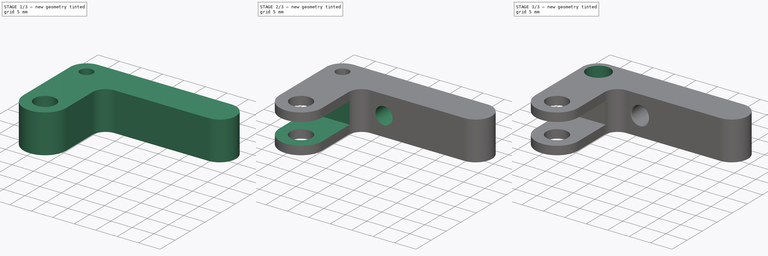
[diagram: build sequence overview — one tinted view per stage of 3, left to right]
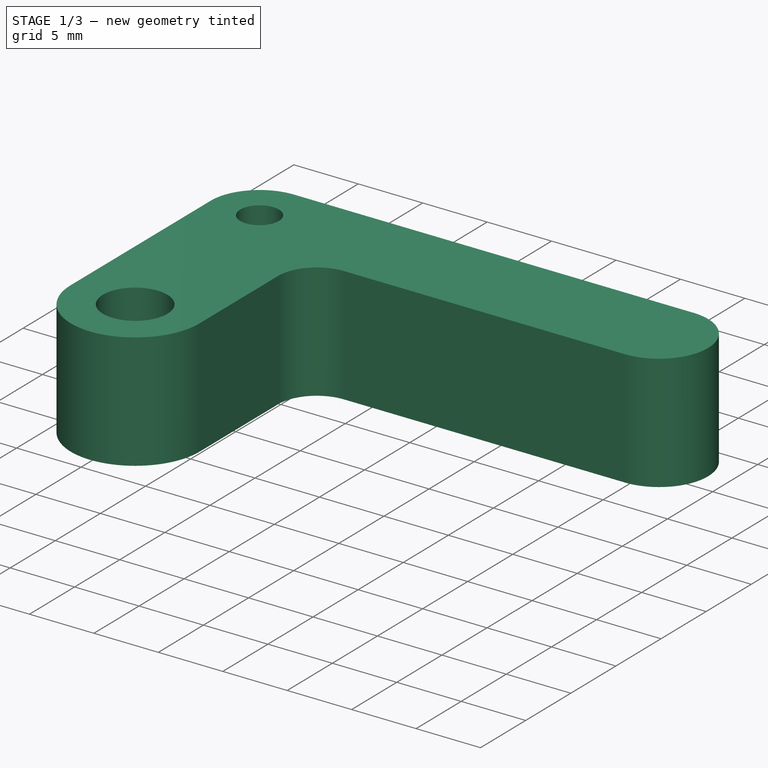
[diagram: stage 1 of 3 — iso view after this stage's code; geometry added in this stage tinted green]
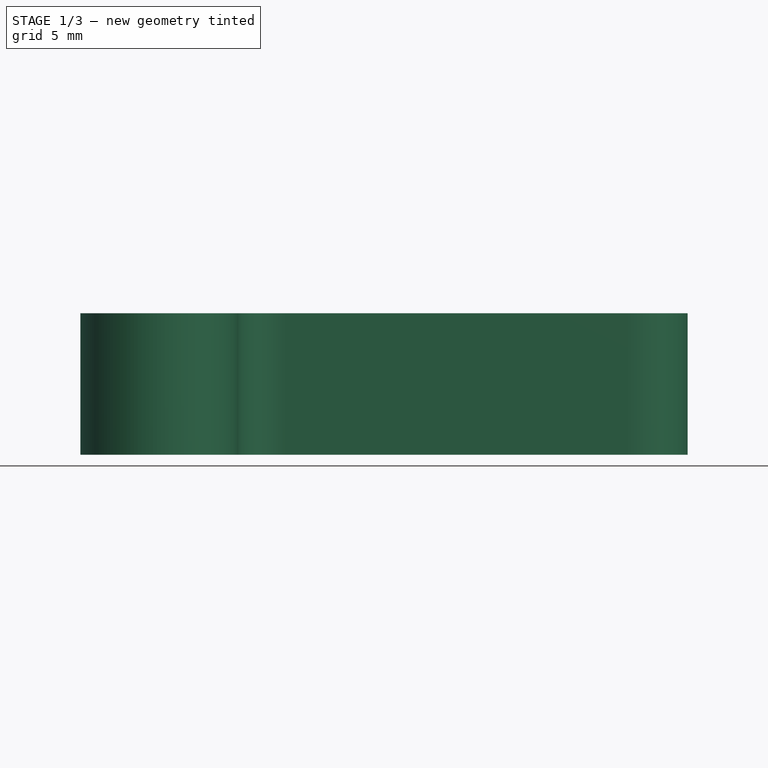
[diagram: stage 1 of 3 — front view after this stage's code; geometry added in this stage tinted green]
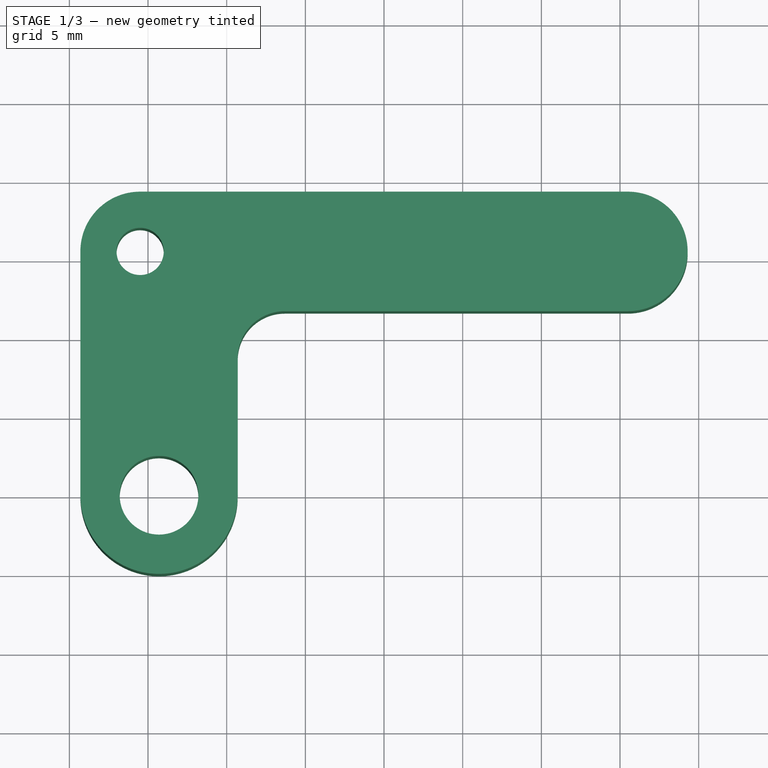
[diagram: stage 1 of 3 — top view after this stage's code; geometry added in this stage tinted green]
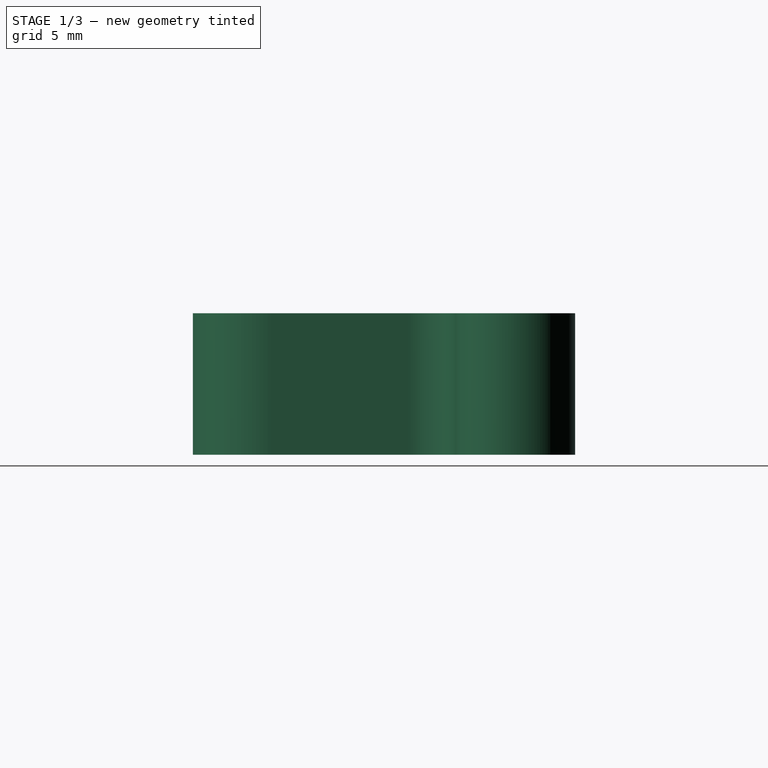
[diagram: stage 1 of 3 — right view after this stage's code; geometry added in this stage tinted green]
FCSTD DOCUMENT  (FreeCAD 0.15R4671 (Git))
Label: bowdenLeaver
License: All rights reserved
LicenseURL: http://en.wikipedia.org/wiki/All_rights_reserved
objects: Drawing::FeatureView×11, Drawing::FeatureViewPart×8, Sketcher::SketchObject×4, PartDesign::Pocket×3, PartDesign::Pad×1, PartDesign::Fillet×1, PartDesign::Chamfer×1, Drawing::FeaturePage×1
note: 14 computed .brp shape members not serialized (recipe doc carries the construction recipe); baked Part::Feature solids carry a one-line shape summary decoded from their .brp

FEATURE [Sketcher::SketchObject] Sketch
  sketch-geometry (30):
    g0: LineSegment [constr] StartX=-21.15 StartY=21.15 StartZ=0 EndX=21.15 EndY=21.15 EndZ=0
    g1: LineSegment [constr] StartX=21.15 StartY=21.15 StartZ=0 EndX=21.15 EndY=-21.15 EndZ=0
    g2: LineSegment [constr] StartX=21.15 StartY=-21.15 StartZ=0 EndX=-21.15 EndY=-21.15 EndZ=0
    g3: LineSegment [constr] StartX=-21.15 StartY=-21.15 StartZ=0 EndX=-21.15 EndY=21.15 EndZ=0
    g4: Circle [constr] CenterX=15.5 CenterY=15.5 CenterZ=0 NormalX=0 NormalY=0 NormalZ=1 Radius=1.5
    g5: Circle CenterX=-15.5 CenterY=15.5 CenterZ=0 NormalX=0 NormalY=0 NormalZ=1 Radius=1.5
    g6: Circle [constr] CenterX=-15.5 CenterY=-15.5 CenterZ=0 NormalX=0 NormalY=0 NormalZ=1 Radius=1.5
    g7: Circle [constr] CenterX=15.5 CenterY=-15.5 CenterZ=0 NormalX=0 NormalY=0 NormalZ=1 Radius=1.5
    g8: Circle [constr] CenterX=0 CenterY=0 CenterZ=0 NormalX=0 NormalY=0 NormalZ=1 Radius=4
    g9: Circle [constr] CenterX=-14.3 CenterY=0 CenterZ=0 NormalX=0 NormalY=0 NormalZ=1 Radius=8
    g10: Circle [constr] CenterX=0 CenterY=0 CenterZ=0 NormalX=0 NormalY=0 NormalZ=1 Radius=3.5
    g11: LineSegment [constr] StartX=-3.5 StartY=0 StartZ=0 EndX=-6.3 EndY=0 EndZ=0
    g12: LineSegment [constr] StartX=-21.15 StartY=-11.15 StartZ=0 EndX=-9.15 EndY=-11.15 EndZ=0
    g13: LineSegment [constr] StartX=21.15 StartY=-11.15 StartZ=0 EndX=21.15 EndY=-21.15 EndZ=0
    g14: LineSegment [constr] StartX=21.15 StartY=-21.15 StartZ=0 EndX=-21.15 EndY=-21.15 EndZ=0
    g15: LineSegment [constr] StartX=-21.15 StartY=-21.15 StartZ=0 EndX=-21.15 EndY=-11.15 EndZ=0
    g16: ArcOfCircle [constr] CenterX=-14.3 CenterY=0 CenterZ=0 NormalX=0 NormalY=0 NormalZ=1 Radius=8.5 StartAngle=5.36326 EndAngle=6.28319
    g17: LineSegment [constr] StartX=-9.15 StartY=-6.76221 StartZ=0 EndX=-9.15 EndY=-11.15 EndZ=0
    g18: ArcOfCircle [constr] CenterX=0 CenterY=0 CenterZ=0 NormalX=0 NormalY=0 NormalZ=1 Radius=4.5 StartAngle=3.14159 EndAngle=4.52236
    g19: LineSegment [constr] StartX=-5.8 StartY=0 StartZ=0 EndX=-4.5 EndY=0 EndZ=0
    g20: LineSegment [constr] StartX=-0.85 StartY=-4.41899 StartZ=0 EndX=-0.85 EndY=-11.15 EndZ=0
    g21: LineSegment [constr] StartX=-0.85 StartY=-11.15 StartZ=0 EndX=21.15 EndY=-11.15 EndZ=0
    g22: LineSegment StartX=15.5 StartY=19.3 StartZ=0 EndX=-15.5 EndY=19.3 EndZ=0
    g23: LineSegment StartX=-19.3 StartY=15.5 StartZ=0 EndX=-19.3 EndY=9.4581e-08 EndZ=0
    g24: LineSegment StartX=-9.3 StartY=11.7 StartZ=0 EndX=-9.3 EndY=1.8515e-08 EndZ=0
    g25: LineSegment StartX=-9.3 StartY=11.7 StartZ=0 EndX=15.5 EndY=11.7 EndZ=0
    g26: Circle CenterX=-14.3 CenterY=0 CenterZ=0 NormalX=0 NormalY=0 NormalZ=1 Radius=2.5
    g27: ArcOfCircle CenterX=-14.3 CenterY=0 CenterZ=0 NormalX=0 NormalY=0 NormalZ=1 Radius=5 StartAngle=3.14159 EndAngle=6.28319
    g28: ArcOfCircle CenterX=-15.5 CenterY=15.5 CenterZ=0 NormalX=0 NormalY=0 NormalZ=1 Radius=3.8 StartAngle=1.5708 EndAngle=3.14159
    g29: ArcOfCircle CenterX=15.5 CenterY=15.5 CenterZ=0 NormalX=0 NormalY=0 NormalZ=1 Radius=3.8 StartAngle=4.71239 EndAngle=7.85398
  constraints (83):
    c: Coincident(g0,g1)
    c: Coincident(g1,g2)
    c: Coincident(g2,g3)
    c: Coincident(g3,g0)
    c: Horizontal(g0)
    c: Horizontal(g2)
    c: Vertical(g1)
    c: Vertical(g3)
    c: Symmetric(g0,g1,g-1)
    c: Symmetric(g0,g0,g-2)
    c: Equal(g1,g0)
    c: DistanceY(g1) = -42.3
    c: Equal(g7,g4)
    c: Equal(g4,g5)
    c: Equal(g5,g6)
    c: Radius(g4) = 1.5
    c: Symmetric(g4,g5,g-2)
    c: Symmetric(g5,g6,g-1)
    c: Symmetric(g7,g6,g-2)
    c: DistanceX(g4,g5) = -31
    c: DistanceY(g5,g6) = -31
    c: Coincident(g8,g-1)
    c: Radius(g8) = 4
    c: Radius(g9) = 8
    c: PointOnObject(g9,g-1)
    c: Coincident(g10,g-1)
    c: Radius(g10) = 3.5
    c: PointOnObject(g11,g10)
    c: PointOnObject(g11,g9)
    c: Horizontal(g11)
    c: PointOnObject(g11,g-1)
    c: DistanceX(g11) = -2.8
    c: Coincident(g21,g13)
    c: Coincident(g13,g14)
    c: Coincident(g14,g15)
    c: Coincident(g15,g12)
    c: Horizontal(g12)
    c: Horizontal(g14)
    c: Vertical(g13)
    c: Vertical(g15)
    c: PointOnObject(g12,g3)
    c: Coincident(g13,g1)
    c: DistanceY(g21,g1) = -10
    c: Coincident(g16,g9)
    c: Radius(g16) = 8.5
    c: Coincident(g17,g16)
    c: Vertical(g17)
    c: Coincident(g18,g-1)
    c: Coincident(g19,g16)
    c: Coincident(g19,g18)
    c: Horizontal(g19)
    c: Radius(g18) = 4.5
    c: Coincident(g20,g18)
    c: Vertical(g20)
    c: Coincident(g12,g17)
    c: Coincident(g21,g20)
    c: Tangent(g12,g21)
    c: DistanceX(g12) = 12
    c: DistanceX(g21) = 22
    c: PointOnObject(g16,g11)
    c: Horizontal(g22)
    c: Vertical(g23)
    c: Vertical(g24)
    c: Horizontal(g25)
    c: Coincident(g26,g9)
    c: Radius(g26) = 2.5
    c: Coincident(g27,g9)
    c: Radius(g27) = 5
    c: Coincident(g27,g23)
    c: Coincident(g27,g24)
    c: Coincident(g28,g5)
    c: Tangent(g23,g28)
    c: Coincident(g28,g23)
    c: Tangent(g22,g28)
    c: Coincident(g28,g22)
    c: Tangent(g27,g23)
    c: Tangent(g27,g24)
    c: Coincident(g29,g4)
    c: Coincident(g22,g29)
    c: Tangent(g22,g29)
    c: Coincident(g25,g29)
    c: Tangent(g29,g25)
    c: Coincident(g24,g25)
FEATURE [PartDesign::Pad] Pad
  Length = 9
  Length2 = 100
  Sketch = -> Sketch
  Type = 0
FEATURE [PartDesign::Fillet] Fillet
  Base = -> Pad [Edge1]
  Radius = 3
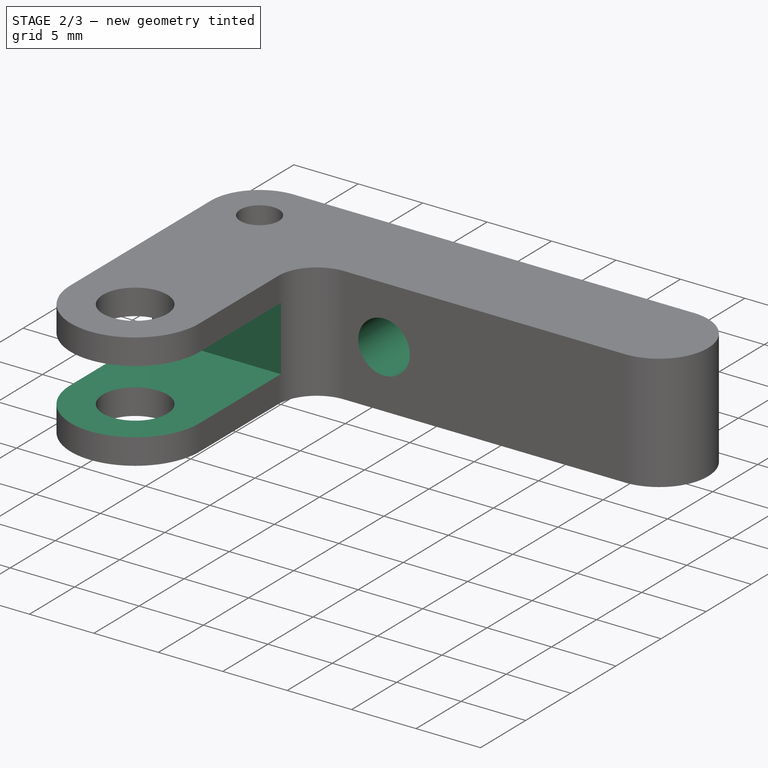
[diagram: stage 2 of 3 — iso view after this stage's code; geometry added in this stage tinted green]
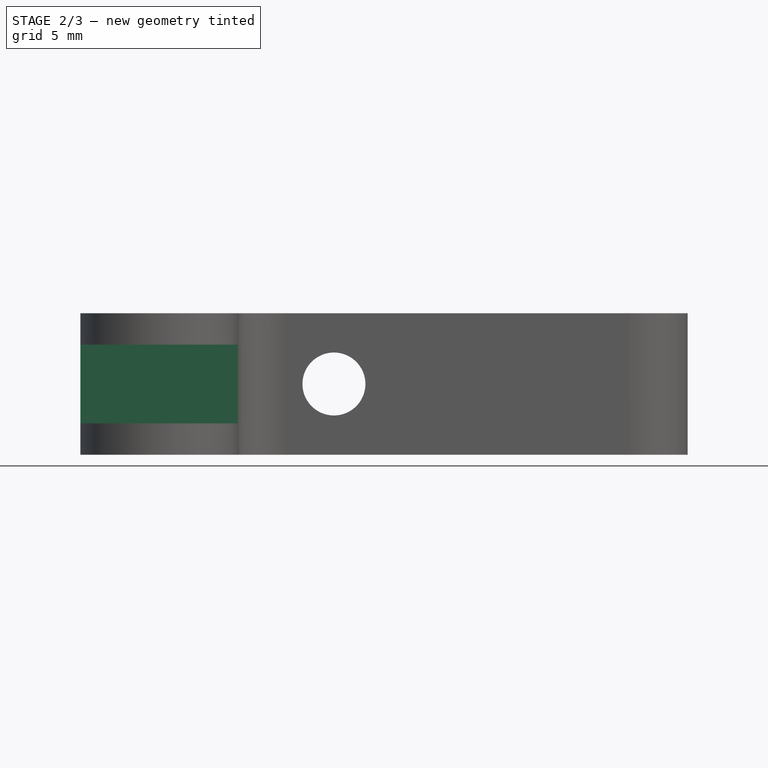
[diagram: stage 2 of 3 — front view after this stage's code; geometry added in this stage tinted green]
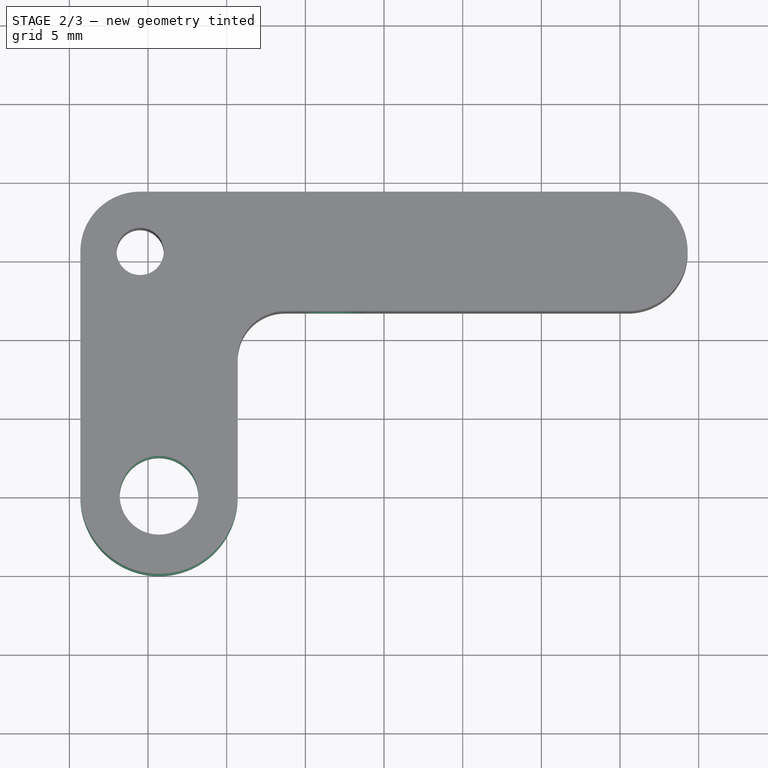
[diagram: stage 2 of 3 — top view after this stage's code; geometry added in this stage tinted green]
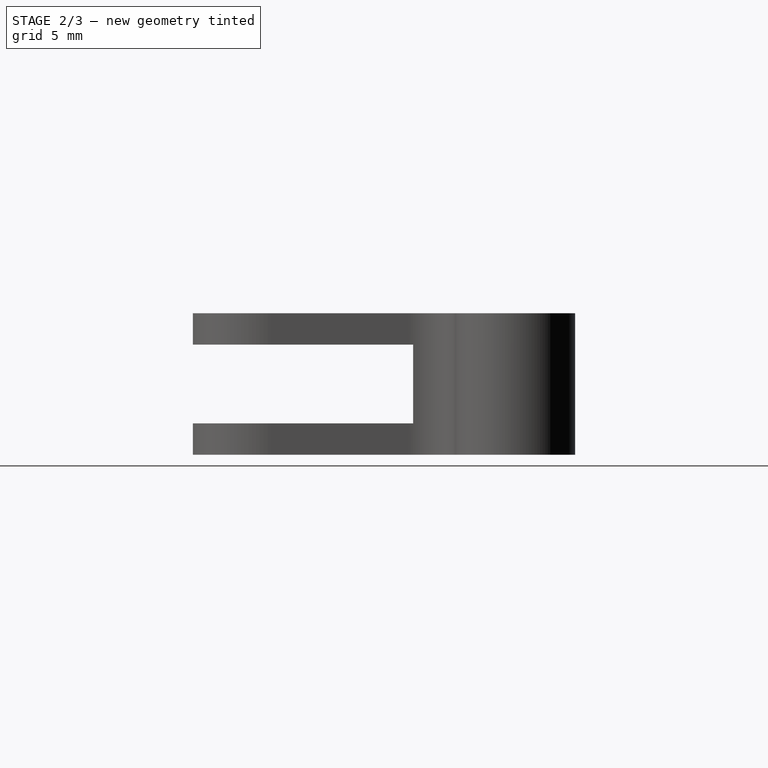
[diagram: stage 2 of 3 — right view after this stage's code; geometry added in this stage tinted green]
FEATURE [Sketcher::SketchObject] Sketch001
  ExternalGeometry = -> [Fillet]
  Placement = pos=(-19.3,0,0) rot=(0.57735,-0.57735,-0.57735;2.0944rad)
  Support = -> Fillet [Face10]
  sketch-geometry (6):
    g0: LineSegment StartX=-9 StartY=7 StartZ=0 EndX=6 EndY=7 EndZ=0
    g1: LineSegment StartX=6 StartY=7 StartZ=0 EndX=6 EndY=2 EndZ=0
    g2: LineSegment StartX=6 StartY=2 StartZ=0 EndX=-9 EndY=2 EndZ=0
    g3: LineSegment StartX=-9 StartY=2 StartZ=0 EndX=-9 EndY=7 EndZ=0
    g4: LineSegment [constr] StartX=-4.3774e-08 StartY=9 StartZ=0 EndX=-4.3774e-08 EndY=7 EndZ=0
    g5: LineSegment [constr] StartX=0 StartY=2 StartZ=0 EndX=0 EndY=0 EndZ=0
  constraints (17):
    c: Coincident(g0,g1)
    c: Coincident(g1,g2)
    c: Coincident(g2,g3)
    c: Coincident(g3,g0)
    c: Horizontal(g0)
    c: Horizontal(g2)
    c: Vertical(g1)
    c: Vertical(g3)
    c: PointOnObject(g4,g0)
    c: Vertical(g4)
    c: PointOnObject(g5,g2)
    c: Coincident(g5,g-1)
    c: Vertical(g5)
    c: Equal(g4,g5)
    c: DistanceY(g3) = 5
    c: DistanceX(g4,g0) = -9
    c: DistanceX(g0,g4) = -6
FEATURE [PartDesign::Pocket] Pocket
  Length = 5
  Sketch = -> Sketch001
  Type = 1
FEATURE [Sketcher::SketchObject] Sketch002
  ExternalGeometry = -> [Pocket]
  Placement = pos=(0,19.3,0) rot=(0,0.707107,0.707107;3.14159rad)
  Support = -> Pocket [Face7]
  sketch-geometry (3):
    g0: Circle CenterX=3.18355 CenterY=4.5 CenterZ=0 NormalX=0 NormalY=0 NormalZ=1 Radius=2
    g1: LineSegment [constr] StartX=3.18355 StartY=9 StartZ=0 EndX=3.18355 EndY=4.5 EndZ=0
    g2: LineSegment [constr] StartX=3.18355 StartY=4.5 StartZ=0 EndX=3.18355 EndY=0 EndZ=0
  constraints (8):
    c: PointOnObject(g1,g-4)
    c: Coincident(g1,g0)
    c: Vertical(g1)
    c: Coincident(g2,g0)
    c: PointOnObject(g2,g-1)
    c: Vertical(g2)
    c: Equal(g2,g1)
    c: Radius(g0) = 2
FEATURE [PartDesign::Pocket] Pocket001
  Length = 5
  Sketch = -> Sketch002
  Type = 2
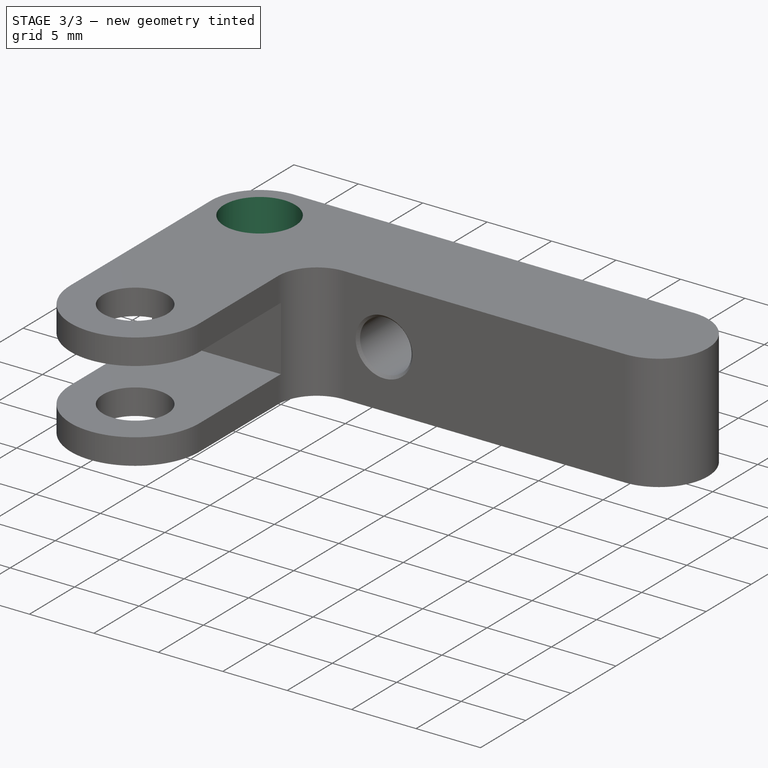
[diagram: stage 3 of 3 — iso view after this stage's code; geometry added in this stage tinted green]
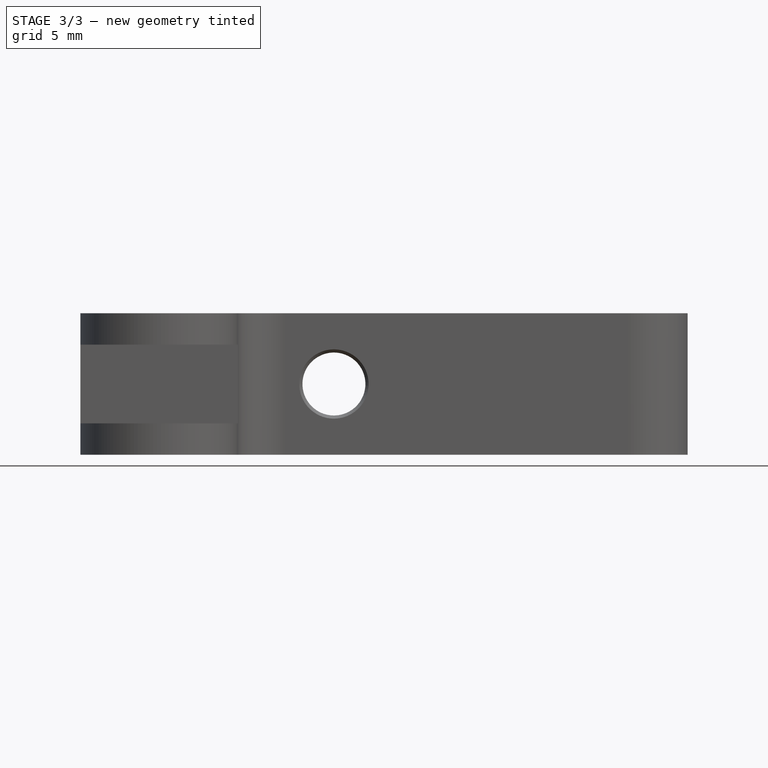
[diagram: stage 3 of 3 — front view after this stage's code; geometry added in this stage tinted green]
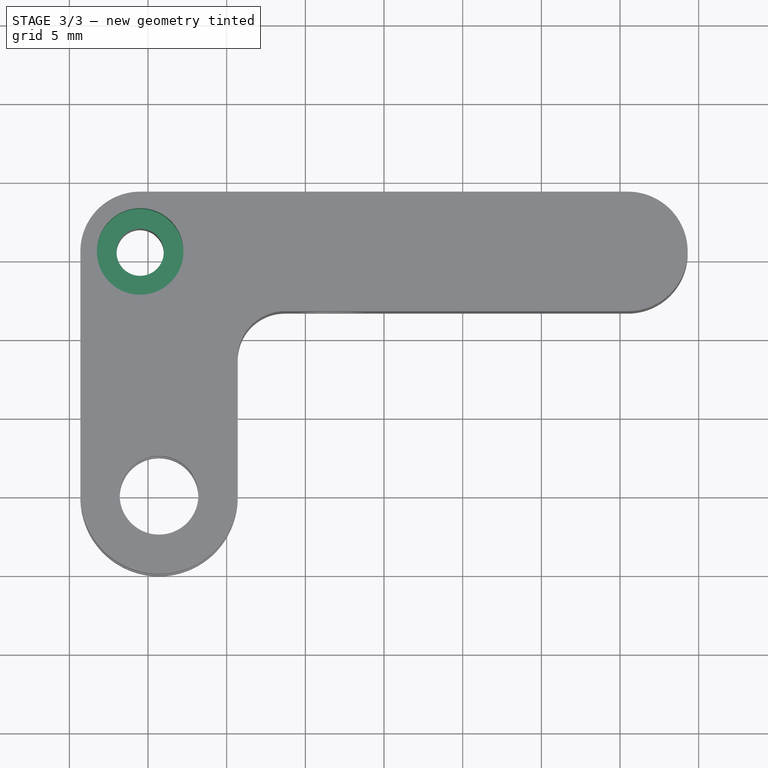
[diagram: stage 3 of 3 — top view after this stage's code; geometry added in this stage tinted green]
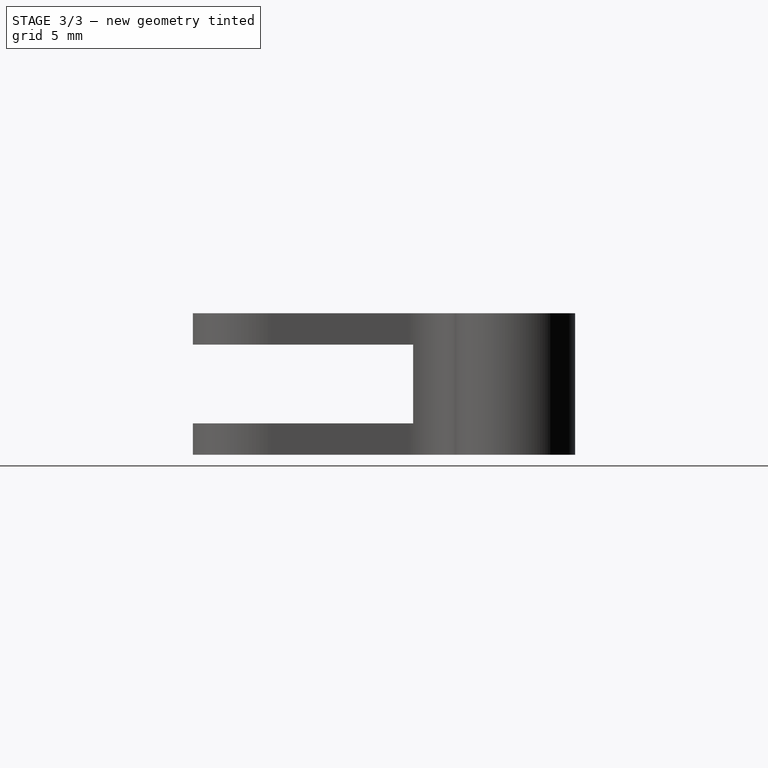
[diagram: stage 3 of 3 — right view after this stage's code; geometry added in this stage tinted green]
FEATURE [PartDesign::Chamfer] Chamfer
  Base = -> Pocket001 [Edge30,Edge5]
  Size = 0.2
FEATURE [Sketcher::SketchObject] Sketch003
  ExternalGeometry = -> [Chamfer]
  Placement = pos=(0,0,9) rot=(0,0,1;0rad)
  Support = -> Chamfer [Face6]
  sketch-geometry (1):
    g0: Circle CenterX=-15.5 CenterY=15.5 CenterZ=0 NormalX=0 NormalY=0 NormalZ=1 Radius=2.75
  constraints (2):
    c: Coincident(g0,g-3)
    c: Radius(g0) = 2.75
FEATURE [PartDesign::Pocket] Pocket002
  Length = 2.9
  Sketch = -> Sketch003
  Type = 0
FEATURE [Drawing::FeatureViewPart] Ortho  label="Ortho_0_0"
  Direction = (0,0,1)
  HiddenWidth = 0.15
  LineWidth = 0.35
  Rotation = 0
  ShowHiddenLines = false
  ShowSmoothLines = false
  Source = -> Pocket002
  Tolerance = 0.05
  ViewResult = <g id="Ortho_0_0"\n   transform="rotate(0,50,47.15) translate(50,47.15) scale(1,1)"\n  >\n<g   stroke="rgb(0, 0, 0)"\n   stroke-width="0.35"\n   stroke-linecap="butt"\n   stroke-linejoin="miter"\n   fill="none"\n   transform="scale(1,-1)"\n  >\n<path id= "1" d=" M -6.3 11.7 L 15.5 11.7 " />\n<path d="M-6.3 11.7 A3 3 0 0 1 -9.3 8.7" /><path d="M-9.28496 9 A3 3 0 0 1 -9.3 8.7" /><path d="M15.5 11.7 A3.8 3.8 0 0 1 15.5 19.3" /><path id= "5" d=" M -9.3 8.7 L -9.3 1.85153e-08 " />\n<path id= "6" d=" M 15.5 19.3 L -15.5 19.3 " />\n<path d="M-19.3 9.45814e-08 A5 5 0 1 1 -9.3 1.85153e-08" /><path d="M-15.5 19.3 A3.8 3.8 0 0 1 -19.3 15.5" /><path id= "9" d=" M -19.3 15.5 L -19.3 9.45814e-08 " />\n<circle cx ="-15.5" cy ="15.5" r ="2.75" /><circle cx ="-14.3" cy ="0" r ="2.5" /><path id= "12" d=" M -9.3 8.7 L -9.3 1.85153e-08 " />\n<path id= "13" d=" M -19.3 9.45814e-08 L -19.3 9 " />\n<circle cx ="-14.3" cy ="0" r ="2.5" /><circle cx ="-15.5" cy ="15.5" r ="1.5" /><circle cx ="-15.5" cy ="15.5" r ="2.75" /></g>\n</g>
  Visible = true
  X = 50
  Y = 47.15
FEATURE [Drawing::FeatureViewPart] Ortho001  label="Ortho_1_0"
  Direction = (1,0,0)
  HiddenWidth = 0.15
  LineWidth = 0.35
  Rotation = 180
  ShowHiddenLines = false
  ShowSmoothLines = false
  Source = -> Pocket002
  Tolerance = 0.05
  ViewResult = <blob: 3133 chars omitted>
  Visible = true
  X = 84.5
  Y = 47.15
FEATURE [Drawing::FeatureViewPart] Ortho002  label="Ortho_0_-1"
  Direction = (0,-1,0)
  HiddenWidth = 0.15
  LineWidth = 0.35
  Rotation = 90
  ShowHiddenLines = false
  ShowSmoothLines = false
  Source = -> Pocket002
  Tolerance = 0.05
  ViewResult = <blob: 3027 chars omitted>
  Visible = true
  X = 50
  Y = 64.5
FEATURE [Drawing::FeatureViewPart] Ortho003  label="Ortho_0_1"
  Direction = (0,1,0)
  HiddenWidth = 0.15
  LineWidth = 0.35
  Rotation = 90
  ShowHiddenLines = false
  ShowSmoothLines = false
  Source = -> Pocket002
  Tolerance = 0.05
  ViewResult = <g id="Ortho_0_1"\n   transform="rotate(90,50,15.5) translate(50,15.5) scale(1,1)"\n  >\n<g   stroke="rgb(0, 0, 0)"\n   stroke-width="0.35"\n   stroke-linecap="butt"\n   stroke-linejoin="miter"\n   fill="none"\n   transform="scale(1,-1)"\n  >\n<path id= "1" d=" M 9 19.3 L 0 19.3 " />\n</g>\n<g   stroke="rgb(0, 0, 0)"\n   stroke-width="0.35"\n   stroke-linecap="butt"\n   stroke-linejoin="miter"\n   fill="none"\n   transform="scale(1,-1)"\n  >\n<path d="M0,19.3 L0,19.2761  L0,19.2047  L0,19.0868  L0,18.9237  L0,18.7176  L0,18.471  L0,18.187  L0,17.8693  L0,17.5217  L0,17.1488  L0,16.7551  L0,16.3456  L0,15.9255  L0,15.5 " /><path id= "2" d=" M 0 15.5 L 0 -15.5 " />\n<path d="M0,-15.5 L0,-15.9255  L0,-16.3456  L0,-16.7551  L0,-17.1488  L0,-17.5217  L0,-17.8693  L0,-18.187  L0,-18.471  L0,-18.7176  L0,-18.9237  L0,-19.0868  L0,-19.2047  L0,-19.2761  L0,-19.3 " /><path d="M9,19.3 L9,19.2761  L9,19.2047  L9,19.0868  L9,18.9237  L9,18.7176  L9,18.471  L9,18.187  L9,17.8693  L9,17.5217  L9,17.1488  L9,16.7551  L9,16.3456  L9,15.9255  L9,15.5 " /><path id= "5" d=" M 9 15.5 L 9 -15.5 " />\n<path d="M9,-15.5 L9,-15.9255  L9,-16.3456  L9,-16.7551  L9,-17.1488  L9,-17.5217  L9,-17.8693  L9,-18.187  L9,-18.471  L9,-18.7176  L9,-18.9237  L9,-19.0868  L9,-19.2047  L9,-19.2761  L9,-19.3 " /><circle cx ="4.5" cy ="-3.18355" r ="2" /><circle cx ="4.5" cy ="-3.18355" r ="2.2" /><path id= "9" d=" M 0 -19.3 L 2 -19.3 " />\n<path id= "10" d=" M 0 -19.3 L 9 -19.3 " />\n<path id= "11" d=" M 7 -19.3 L 9 -19.3 " />\n</g>\n</g>
  Visible = true
  X = 50
  Y = 15.5
FEATURE [Drawing::FeatureViewPart] Ortho004  label="Ortho_-1_0"
  Direction = (-1,0,0)
  HiddenWidth = 0.15
  LineWidth = 0.35
  Rotation = 180
  ShowHiddenLines = false
  ShowSmoothLines = false
  Source = -> Pocket002
  Tolerance = 0.05
  ViewResult = <blob: 2157 chars omitted>
  Visible = true
  X = 15.5
  Y = 47.15
FEATURE [Drawing::FeatureViewPart] Ortho005  label="Ortho_0_002"
  Direction = (0,0,1)
  HiddenWidth = 0.15
  LineWidth = 0.35
  Rotation = 0
  Scale = 2
  ShowHiddenLines = false
  ShowSmoothLines = false
  Source = -> Pocket002
  Tolerance = 0.05
  ViewResult = <g id="Ortho_0_002"\n   transform="rotate(0,208.5,159.3) translate(208.5,159.3) scale(2,2)"\n  >\n<g   stroke="rgb(0, 0, 0)"\n   stroke-width="0.175"\n   stroke-linecap="butt"\n   stroke-linejoin="miter"\n   fill="none"\n   transform="scale(1,-1)"\n  >\n<path id= "1" d=" M -6.3 11.7 L 15.5 11.7 " />\n<path d="M-6.3 11.7 A3 3 0 0 1 -9.3 8.7" /><path d="M-9.28496 9 A3 3 0 0 1 -9.3 8.7" /><path d="M15.5 11.7 A3.8 3.8 0 0 1 15.5 19.3" /><path id= "5" d=" M -9.3 8.7 L -9.3 1.85153e-08 " />\n<path id= "6" d=" M 15.5 19.3 L -15.5 19.3 " />\n<path d="M-19.3 9.45814e-08 A5 5 0 1 1 -9.3 1.85153e-08" /><path d="M-15.5 19.3 A3.8 3.8 0 0 1 -19.3 15.5" /><path id= "9" d=" M -19.3 15.5 L -19.3 9.45814e-08 " />\n<circle cx ="-15.5" cy ="15.5" r ="2.75" /><circle cx ="-14.3" cy ="0" r ="2.5" /><path id= "12" d=" M -9.3 8.7 L -9.3 1.85153e-08 " />\n<path id= "13" d=" M -19.3 9.45814e-08 L -19.3 9 " />\n<circle cx ="-14.3" cy ="0" r ="2.5" /><circle cx ="-15.5" cy ="15.5" r ="1.5" /><circle cx ="-15.5" cy ="15.5" r ="2.75" /></g>\n</g>
  Visible = true
  X = 208.5
  Y = 159.3
FEATURE [Drawing::FeatureViewPart] Ortho006  label="Ortho_0_003"
  Direction = (0,1,0)
  HiddenWidth = 0.15
  LineWidth = 0.35
  Rotation = 90
  Scale = 2
  ShowHiddenLines = false
  ShowSmoothLines = false
  Source = -> Pocket002
  Tolerance = 0.05
  ViewResult = <g id="Ortho_0_003"\n   transform="rotate(90,208.5,96) translate(208.5,96) scale(2,2)"\n  >\n<g   stroke="rgb(0, 0, 0)"\n   stroke-width="0.175"\n   stroke-linecap="butt"\n   stroke-linejoin="miter"\n   fill="none"\n   transform="scale(1,-1)"\n  >\n<path id= "1" d=" M 9 19.3 L 0 19.3 " />\n</g>\n<g   stroke="rgb(0, 0, 0)"\n   stroke-width="0.175"\n   stroke-linecap="butt"\n   stroke-linejoin="miter"\n   fill="none"\n   transform="scale(1,-1)"\n  >\n<path d="M0,19.3 L0,19.2761  L0,19.2047  L0,19.0868  L0,18.9237  L0,18.7176  L0,18.471  L0,18.187  L0,17.8693  L0,17.5217  L0,17.1488  L0,16.7551  L0,16.3456  L0,15.9255  L0,15.5 " /><path id= "2" d=" M 0 15.5 L 0 -15.5 " />\n<path d="M0,-15.5 L0,-15.9255  L0,-16.3456  L0,-16.7551  L0,-17.1488  L0,-17.5217  L0,-17.8693  L0,-18.187  L0,-18.471  L0,-18.7176  L0,-18.9237  L0,-19.0868  L0,-19.2047  L0,-19.2761  L0,-19.3 " /><path d="M9,19.3 L9,19.2761  L9,19.2047  L9,19.0868  L9,18.9237  L9,18.7176  L9,18.471  L9,18.187  L9,17.8693  L9,17.5217  L9,17.1488  L9,16.7551  L9,16.3456  L9,15.9255  L9,15.5 " /><path id= "5" d=" M 9 15.5 L 9 -15.5 " />\n<path d="M9,-15.5 L9,-15.9255  L9,-16.3456  L9,-16.7551  L9,-17.1488  L9,-17.5217  L9,-17.8693  L9,-18.187  L9,-18.471  L9,-18.7176  L9,-18.9237  L9,-19.0868  L9,-19.2047  L9,-19.2761  L9,-19.3 " /><circle cx ="4.5" cy ="-3.18355" r ="2" /><circle cx ="4.5" cy ="-3.18355" r ="2.2" /><path id= "9" d=" M 0 -19.3 L 2 -19.3 " />\n<path id= "10" d=" M 0 -19.3 L 9 -19.3 " />\n<path id= "11" d=" M 7 -19.3 L 9 -19.3 " />\n</g>\n</g>
  Visible = true
  X = 208.5
  Y = 96
FEATURE [Drawing::FeatureViewPart] Ortho007  label="Ortho_-1_001"
  Direction = (-1,0,0)
  HiddenWidth = 0.15
  LineWidth = 0.35
  Rotation = 180
  Scale = 2
  ShowHiddenLines = false
  ShowSmoothLines = false
  Source = -> Pocket002
  Tolerance = 0.05
  ViewResult = <blob: 2163 chars omitted>
  Visible = true
  X = 139.5
  Y = 159.3
FEATURE [Drawing::FeatureView] centerLines
  Rotation = 0
  ViewResult = <g transform="scale(1.000000,1.000000)" stroke="rgb(0,0,255)"  stroke-width="0.300000" > <path d="M 34.500000,31.650000 L 34.500000,33.650000 "/>\n<path d="M 34.500000,31.650000 L 32.500000,31.650000 M 30.500000,31.650000 L 30.000000,31.650000 "/>\n<path d="M 34.500000,31.650000 L 34.500000,30.000000 "/>\n<path d="M 34.500000,31.650000 L 36.500000,31.650000 M 38.500000,31.650000 L 40.000000,31.650000 "/> </g> 
  Visible = true
  X = 0
  Y = 0
FEATURE [Drawing::FeatureView] centerLines001
  Rotation = 0
  ViewResult = <g transform="scale(1.000000,1.000000)" stroke="rgb(0,0,255)"  stroke-width="0.300000" > <path d="M 35.700000,47.150000 L 35.700000,45.150000 M 35.700000,43.150000 L 35.700000,40.000000 "/>\n<path d="M 35.700000,47.150000 L 33.700000,47.150000 M 31.700000,47.150000 L 30.000000,47.150000 "/>\n<path d="M 35.700000,47.150000 L 35.700000,49.150000 "/>\n<path d="M 35.700000,47.150000 L 37.700000,47.150000 M 39.700000,47.150000 L 40.000000,47.150000 "/> </g> 
  Visible = true
  X = 0
  Y = 0
FEATURE [Drawing::FeatureView] centerLines002
  Rotation = 0
  ViewResult = <g transform="scale(1.000000,1.000000)" stroke="rgb(0,0,255)"  stroke-width="0.300000" > <path d="M 46.816450,60.000000 L 46.816450,62.000000 M 46.816450,64.000000 L 46.816450,65.000000 "/>\n<path d="M 46.816450,60.000000 L 44.816450,60.000000 M 42.816450,60.000000 L 40.000000,60.000000 "/>\n<path d="M 46.816450,60.000000 L 46.816450,58.000000 M 46.816450,56.000000 L 46.816450,55.000000 "/>\n<path d="M 46.816450,60.000000 L 48.816450,60.000000 M 50.816450,60.000000 L 55.000000,60.000000 "/> </g> 
  Visible = true
  X = 0
  Y = 0
FEATURE [Drawing::FeatureView] centerLines003
  Rotation = 0
  ViewResult = <g transform="scale(1.000000,1.000000)" stroke="rgb(0,0,255)"  stroke-width="0.300000" > <path d="M 46.816450,20.000000 L 46.816450,22.000000 M 46.816450,24.000000 L 46.816450,25.000000 "/>\n<path d="M 46.816450,20.000000 L 44.816450,20.000000 M 42.816450,20.000000 L 40.000000,20.000000 "/>\n<path d="M 46.816450,20.000000 L 46.816450,18.000000 M 46.816450,16.000000 L 46.816450,15.000000 "/>\n<path d="M 46.816450,20.000000 L 48.816450,20.000000 "/> </g> 
  Visible = true
  X = 0
  Y = 0
FEATURE [Drawing::FeatureView] dim
  Rotation = 0
  ViewResult = <g>  <circle cx ="177.500000" cy ="128.300000" r="0.500000" stroke="none" fill="rgb(0,0,255)" /> \n<line x1="160.000000" y1="115.000000" x2="179.888487" y2="130.115250" style="stroke:rgb(0,0,255);stroke-width:0.50" />\n<polygon points="175.111513,126.484750 173.328110,123.873338 171.926865,124.064417 172.117944,125.465663" style="fill:rgb(0,0,255);stroke:rgb(0,0,255);stroke-width:0" />\n<polygon points="179.888487,130.115250 181.671890,132.726662 183.073135,132.535583 182.882056,131.134337" style="fill:rgb(0,0,255);stroke:rgb(0,0,255);stroke-width:0" />\n<line x1="160.000000" y1="115.000000" x2="145.000000" y2="115.000000" style="stroke:rgb(0,0,255);stroke-width:0.50" />\n<text x="152.500000" y="113.000000" font-family="inherit" font-size="10" fill="rgb(0,0,255)" text-anchor="middle" transform="rotate(0.000000 152.500000,113.000000)" >Ø3</text> </g>
  Visible = true
  X = 0
  Y = 0
FEATURE [Drawing::FeatureView] dim001
  Rotation = 0
  ViewResult = <g>  <circle cx ="179.900000" cy ="159.300000" r="0.500000" stroke="none" fill="rgb(0,0,255)" /> \n<line x1="195.000000" y1="175.000000" x2="176.433998" y2="155.696276" style="stroke:rgb(0,0,255);stroke-width:0.50" />\n<polygon points="183.366002,162.903724 182.007146,160.048289 180.593200,160.020745 180.565656,161.434690" style="fill:rgb(0,0,255);stroke:rgb(0,0,255);stroke-width:0" />\n<polygon points="176.433998,155.696276 177.792854,158.551711 179.206800,158.579255 179.234344,157.165310" style="fill:rgb(0,0,255);stroke:rgb(0,0,255);stroke-width:0" />\n<line x1="195.000000" y1="175.000000" x2="210.000000" y2="175.000000" style="stroke:rgb(0,0,255);stroke-width:0.50" />\n<text x="202.500000" y="173.000000" font-family="inherit" font-size="10" fill="rgb(0,0,255)" text-anchor="middle" transform="rotate(0.000000 202.500000,173.000000)" >Ø5</text> </g>
  Visible = true
  X = 0
  Y = 0
FEATURE [Drawing::FeatureView] dim002
  Rotation = 0
  ViewResult = <g>  <circle cx ="202.132900" cy ="105.000000" r="0.500000" stroke="none" fill="rgb(0,0,255)" /> \n<line x1="195.000000" y1="90.000000" x2="203.850679" y2="108.612372" style="stroke:rgb(0,0,255);stroke-width:0.50" />\n<polygon points="200.415121,101.387628 200.029879,98.248904 198.697341,97.775255 198.223693,99.107793" style="fill:rgb(0,0,255);stroke:rgb(0,0,255);stroke-width:0" />\n<polygon points="203.850679,108.612372 204.235921,111.751096 205.568459,112.224745 206.042107,110.892207" style="fill:rgb(0,0,255);stroke:rgb(0,0,255);stroke-width:0" />\n<line x1="195.000000" y1="90.000000" x2="175.000000" y2="90.000000" style="stroke:rgb(0,0,255);stroke-width:0.50" />\n<text x="185.000000" y="88.000000" font-family="inherit" font-size="10" fill="rgb(0,0,255)" text-anchor="middle" transform="rotate(0.000000 185.000000,88.000000)" >Ø4</text> </g>
  Visible = true
  X = 0
  Y = 0
FEATURE [Drawing::FeatureView] dim003
  Rotation = 0
  ViewResult = <g> \n  <line x1="247.100000" y1="94.000000" x2="247.100000" y2="74.000000" style="stroke:rgb(0,0,255);stroke-width:0.50" />\n<line x1="169.900000" y1="94.000000" x2="169.900000" y2="74.000000" style="stroke:rgb(0,0,255);stroke-width:0.50" />\n<line x1="247.100000" y1="75.000000" x2="169.900000" y2="75.000000" style="stroke:rgb(0,0,255);stroke-width:0.50" /> \n  <polygon points="169.900000,75.000000 172.900000,76.000000 173.900000,75.000000 172.900000,74.000000" style="fill:rgb(0,0,255);stroke:rgb(0,0,255);stroke-width:0" /><polygon points="247.100000,75.000000 244.100000,74.000000 243.100000,75.000000 244.100000,76.000000" style="fill:rgb(0,0,255);stroke:rgb(0,0,255);stroke-width:0" /> \n  <text x="208.500000" y="73.000000" font-family="inherit" font-size="10" fill="rgb(0,0,255)" text-anchor="middle" transform="rotate(-0.000000 208.500000,73.000000)" >38.6</text> </g>
  Visible = true
  X = 0
  Y = 0
FEATURE [Drawing::FeatureView] dim004
  Rotation = 0
  ViewResult = <g> \n  <line x1="167.900000" y1="114.000000" x2="129.000000" y2="114.000000" style="stroke:rgb(0,0,255);stroke-width:0.50" />\n<line x1="167.900000" y1="96.000000" x2="129.000000" y2="96.000000" style="stroke:rgb(0,0,255);stroke-width:0.50" />\n<line x1="130.000000" y1="114.000000" x2="130.000000" y2="96.000000" style="stroke:rgb(0,0,255);stroke-width:0.50" /> \n  <polygon points="130.000000,96.000000 129.000000,99.000000 130.000000,100.000000 131.000000,99.000000" style="fill:rgb(0,0,255);stroke:rgb(0,0,255);stroke-width:0" /><polygon points="130.000000,114.000000 131.000000,111.000000 130.000000,110.000000 129.000000,111.000000" style="fill:rgb(0,0,255);stroke:rgb(0,0,255);stroke-width:0" /> \n  <text x="128.000000" y="105.000000" font-family="inherit" font-size="10" fill="rgb(0,0,255)" text-anchor="middle" transform="rotate(-90.000000 128.000000,105.000000)" >9</text> </g>
  Visible = true
  X = 0
  Y = 0
FEATURE [Drawing::FeatureView] dim005
  Rotation = 0
  ViewResult = <g> \n  <line x1="143.500000" y1="171.300000" x2="143.500000" y2="181.000000" style="stroke:rgb(0,0,255);stroke-width:0.50" />\n<line x1="153.500000" y1="171.300000" x2="153.500000" y2="181.000000" style="stroke:rgb(0,0,255);stroke-width:0.50" />\n<line x1="143.500000" y1="180.000000" x2="153.500000" y2="180.000000" style="stroke:rgb(0,0,255);stroke-width:0.50" /> \n  <polygon points="153.500000,180.000000 156.500000,181.000000 157.500000,180.000000 156.500000,179.000000" style="fill:rgb(0,0,255);stroke:rgb(0,0,255);stroke-width:0" /><polygon points="143.500000,180.000000 140.500000,179.000000 139.500000,180.000000 140.500000,181.000000" style="fill:rgb(0,0,255);stroke:rgb(0,0,255);stroke-width:0" /> \n  <text x="148.500000" y="178.000000" font-family="inherit" font-size="10" fill="rgb(0,0,255)" text-anchor="middle" transform="rotate(0.000000 148.500000,178.000000)" >5</text> </g>
  Visible = true
  X = 0
  Y = 0
FEATURE [Drawing::FeatureView] dim006
  Rotation = 0
  ViewResult = <g> \n  <line x1="137.500000" y1="169.300000" x2="124.000000" y2="169.300000" style="stroke:rgb(0,0,255);stroke-width:0.50" />\n<line x1="137.500000" y1="120.700000" x2="124.000000" y2="120.700000" style="stroke:rgb(0,0,255);stroke-width:0.50" />\n<line x1="125.000000" y1="169.300000" x2="125.000000" y2="120.700000" style="stroke:rgb(0,0,255);stroke-width:0.50" /> \n  <polygon points="125.000000,120.700000 124.000000,123.700000 125.000000,124.700000 126.000000,123.700000" style="fill:rgb(0,0,255);stroke:rgb(0,0,255);stroke-width:0" /><polygon points="125.000000,169.300000 126.000000,166.300000 125.000000,165.300000 124.000000,166.300000" style="fill:rgb(0,0,255);stroke:rgb(0,0,255);stroke-width:0" /> \n  <text x="123.000000" y="145.000000" font-family="inherit" font-size="10" fill="rgb(0,0,255)" text-anchor="middle" transform="rotate(-90.000000 123.000000,145.000000)" >24.3</text> </g>
  Visible = true
  X = 0
  Y = 0
FEATURE [Drawing::FeaturePage] Page
  Group = -> [Ortho,Ortho001,Ortho002,Ortho003,Ortho004,Ortho005,Ortho006,Ortho007,centerLines,centerLines001,centerLines002,centerLines003,dim,dim001,dim002,dim003,dim004,dim005,dim006]
  Template = <path>
note: 1 file-system path scrubbed to <path> (originals preserved in the JSON sidecar)
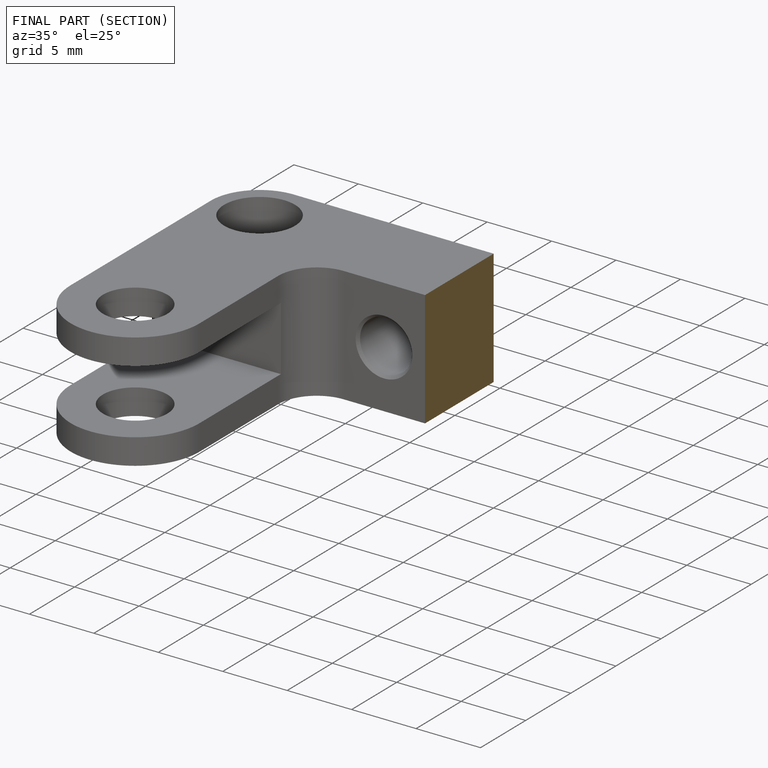
[diagram: finished part — half-section view (interior)]
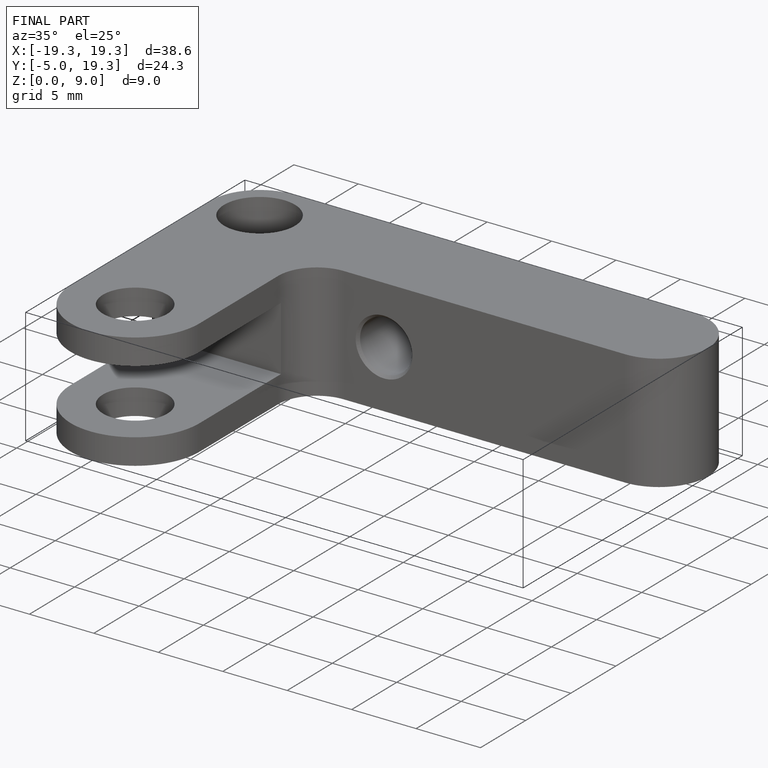
[diagram: finished part — iso view with bounding-box wireframe]
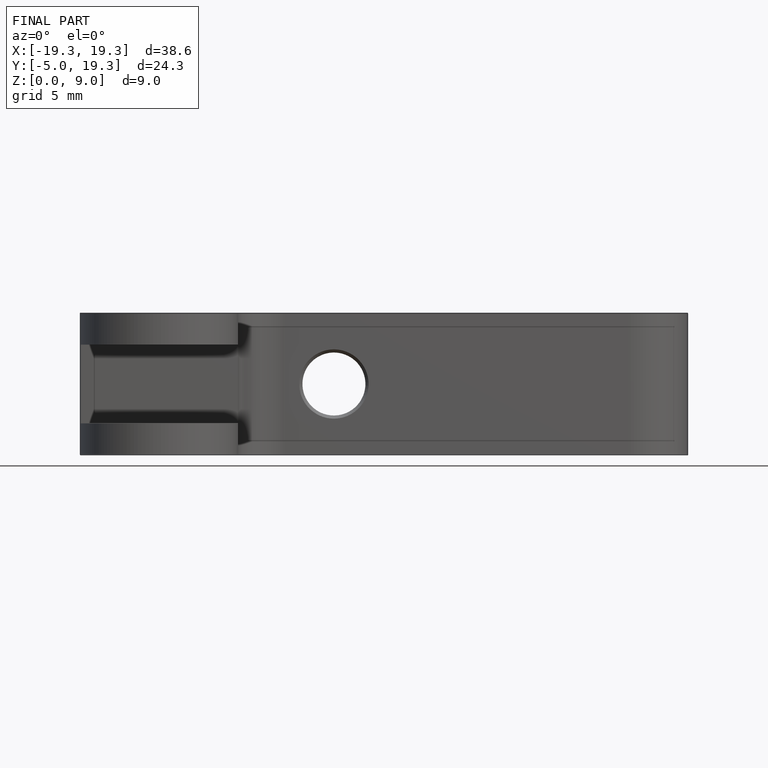
[diagram: finished part — front view with bounding-box wireframe]
